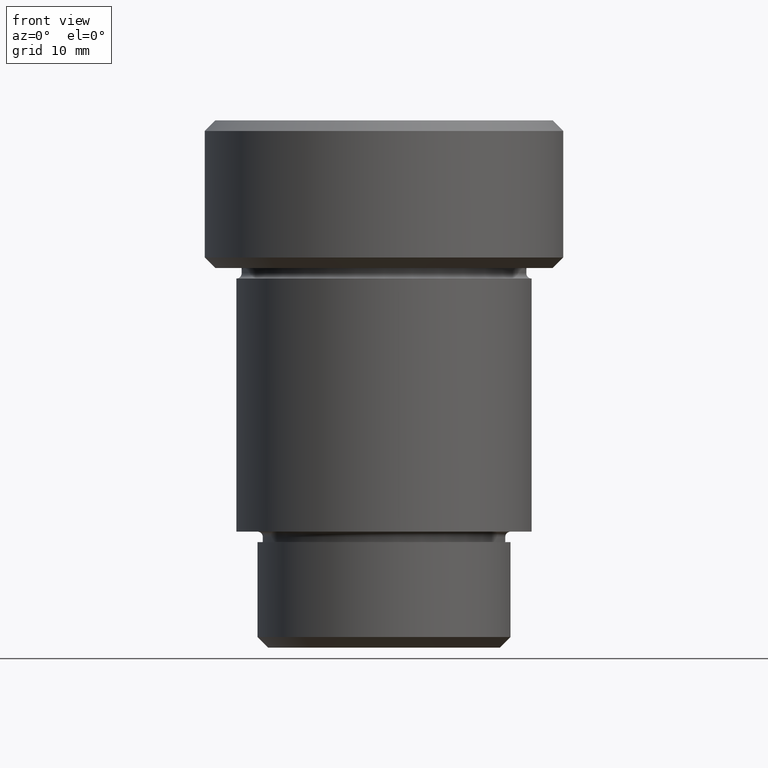
[diagram: clean part render]
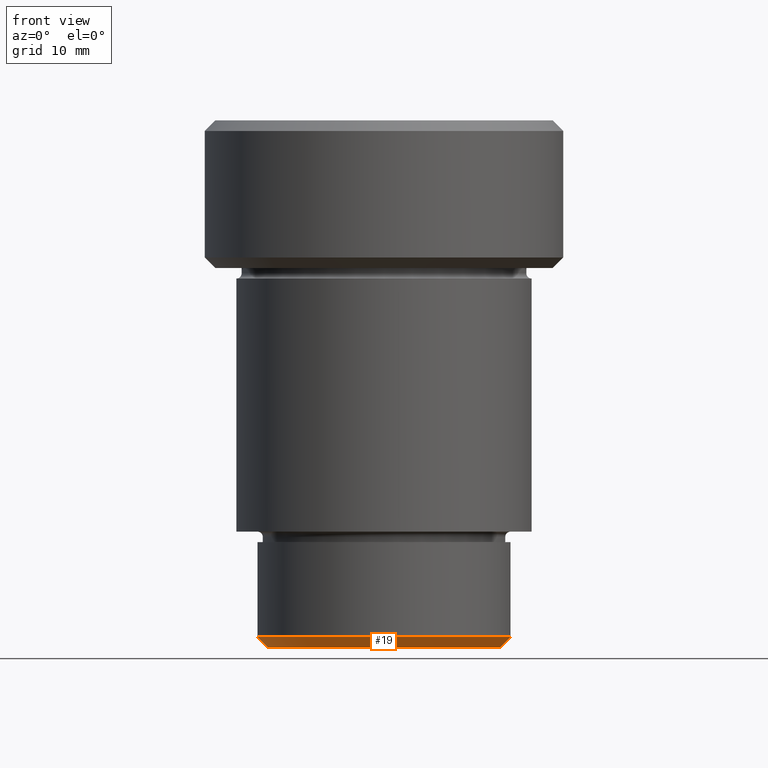
[diagram: same view with one face highlighted and labeled with its STEP entity id]
A machine part, front view. The second image highlights one B-rep face of the part: STEP entity #19.
In plain terms, the highlighted conical surface has half-angle 45 deg.
Its self-contained STEP definition (entity closure, byte-faithful):
#2 = CARTESIAN_POINT ( 'NONE',  ( 12.00000000000000355, 0.000000000000000000, -48.99999999999997868 ) ) ;
#16 = CIRCLE ( 'NONE', #650, 10.99999999999997513 ) ;
#19 = ADVANCED_FACE ( 'NONE', ( #634 ), #478, .T. ) ;
#20 = CARTESIAN_POINT ( 'NONE',  ( 0.000000000000000000, 0.000000000000000000, -48.99999999999997868 ) ) ;
#32 = CARTESIAN_POINT ( 'NONE',  ( 0.000000000000000000, 0.000000000000000000, -50.00000000000000000 ) ) ;
#43 = AXIS2_PLACEMENT_3D ( 'NONE', #214, #766, #453 ) ;
#51 = LINE ( 'NONE', #2, #636 ) ;
#64 = DIRECTION ( 'NONE',  ( 1.000000000000000000, 0.000000000000000000, 0.000000000000000000 ) ) ;
#67 = DIRECTION ( 'NONE',  ( -0.7071067811865500152, 8.659560562354962440E-17, 0.7071067811865451302 ) ) ;
#68 = AXIS2_PLACEMENT_3D ( 'NONE', #20, #683, #64 ) ;
#154 = EDGE_LOOP ( 'NONE', ( #573, #322, #775, #422 ) ) ;
#167 = CARTESIAN_POINT ( 'NONE',  ( 10.99999999999997513, 0.000000000000000000, -50.00000000000000000 ) ) ;
#214 = CARTESIAN_POINT ( 'NONE',  ( 0.000000000000000000, 0.000000000000000000, -48.99999999999997868 ) ) ;
#229 = VERTEX_POINT ( 'NONE', #167 ) ;
#270 = EDGE_CURVE ( 'NONE', #414, #539, #786, .T. ) ;
#297 = EDGE_CURVE ( 'NONE', #229, #693, #16, .T. ) ;
#307 = DIRECTION ( 'NONE',  ( 0.7071067811865500152, 0.000000000000000000, 0.7071067811865451302 ) ) ;
#322 = ORIENTED_EDGE ( 'NONE', *, *, #297, .F. ) ;
#372 = EDGE_CURVE ( 'NONE', #693, #414, #553, .T. ) ;
#414 = VERTEX_POINT ( 'NONE', #785 ) ;
#422 = ORIENTED_EDGE ( 'NONE', *, *, #270, .F. ) ;
#453 = DIRECTION ( 'NONE',  ( -1.000000000000000000, 0.000000000000000000, 0.000000000000000000 ) ) ;
#478 = CONICAL_SURFACE ( 'NONE', #68, 12.00000000000000355, 0.7853981633974517207 ) ;
#508 = VECTOR ( 'NONE', #67, 1000.000000000000114 ) ;
#516 = CARTESIAN_POINT ( 'NONE',  ( 12.00000000000000355, 0.000000000000000000, -48.99999999999997868 ) ) ;
#539 = VERTEX_POINT ( 'NONE', #516 ) ;
#553 = LINE ( 'NONE', #779, #508 ) ;
#573 = ORIENTED_EDGE ( 'NONE', *, *, #372, .F. ) ;
#576 = DIRECTION ( 'NONE',  ( 0.000000000000000000, 0.000000000000000000, -1.000000000000000000 ) ) ;
#634 = FACE_OUTER_BOUND ( 'NONE', #154, .T. ) ;
#636 = VECTOR ( 'NONE', #307, 1000.000000000000114 ) ;
#650 = AXIS2_PLACEMENT_3D ( 'NONE', #32, #576, #716 ) ;
#680 = CARTESIAN_POINT ( 'NONE',  ( -10.99999999999997513, 1.408343819019454993E-15, -50.00000000000000000 ) ) ;
#683 = DIRECTION ( 'NONE',  ( -0.000000000000000000, -0.000000000000000000, 1.000000000000000000 ) ) ;
#686 = EDGE_CURVE ( 'NONE', #229, #539, #51, .T. ) ;
#693 = VERTEX_POINT ( 'NONE', #680 ) ;
#716 = DIRECTION ( 'NONE',  ( -1.000000000000000000, 0.000000000000000000, 0.000000000000000000 ) ) ;
#766 = DIRECTION ( 'NONE',  ( -0.000000000000000000, -0.000000000000000000, 1.000000000000000000 ) ) ;
#775 = ORIENTED_EDGE ( 'NONE', *, *, #686, .T. ) ;
#779 = CARTESIAN_POINT ( 'NONE',  ( -12.00000000000000355, 1.469576158976824342E-15, -48.99999999999997868 ) ) ;
#785 = CARTESIAN_POINT ( 'NONE',  ( -12.00000000000000355, 1.469576158976824342E-15, -48.99999999999997868 ) ) ;
#786 = CIRCLE ( 'NONE', #43, 12.00000000000000355 ) ;